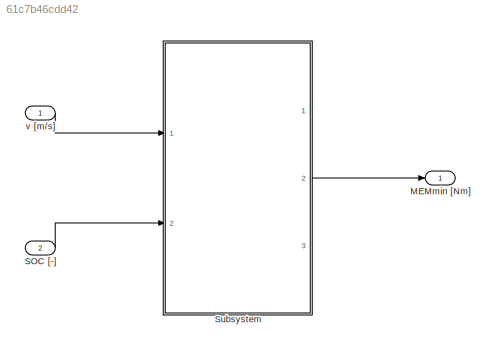
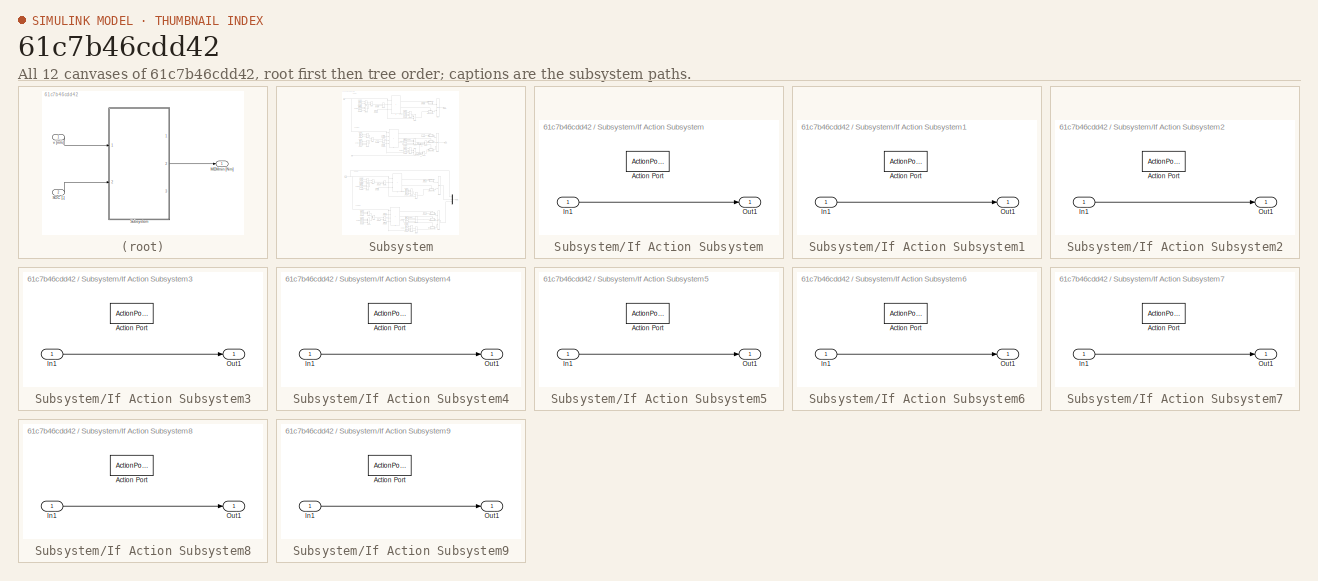
[diagram: thumbnail index - all 12 canvases of the model, root first then tree order]
MODEL slx_61c7b46cdd42
KIND model
CONFIG AbsTol = auto
CONFIG EnableMultiTasking = off
CONFIG FixedStep = auto
CONFIG MaxStep = auto
CONFIG MinStep = auto
CONFIG RelTol = 1e-3
CONFIG SampleTimeConstraint = Unconstrained
CONFIG Solver = VariableStepAuto
CONFIG SolverName = VariableStepAuto
CONFIG StartTime = 0.0
CONFIG StopTime = 250/3.6
BLOCK [Outport] MEMmin [Nm]
  IconDisplay = Port number
BLOCK [Inport] SOC [-]
  IconDisplay = Port number
  Port = 2
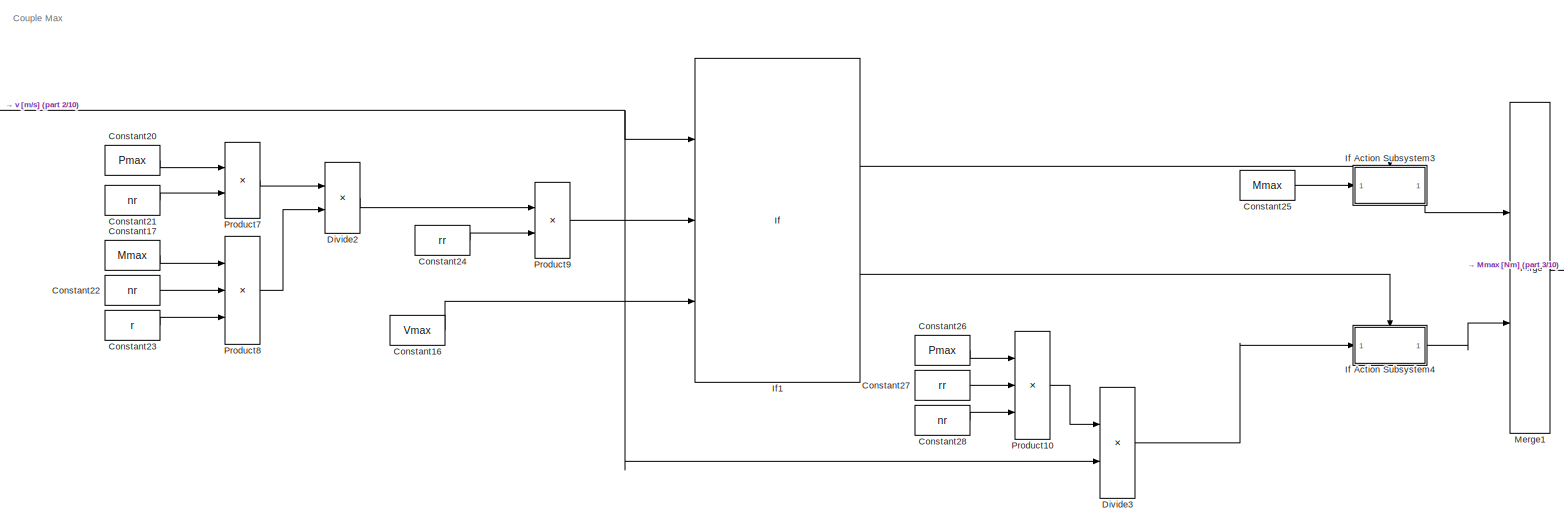
[diagram: Subsystem - part 1/10, full width, top band]
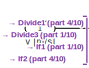
[diagram: Subsystem - part 2/10, top left region]
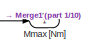
[diagram: Subsystem - part 3/10, top right region]
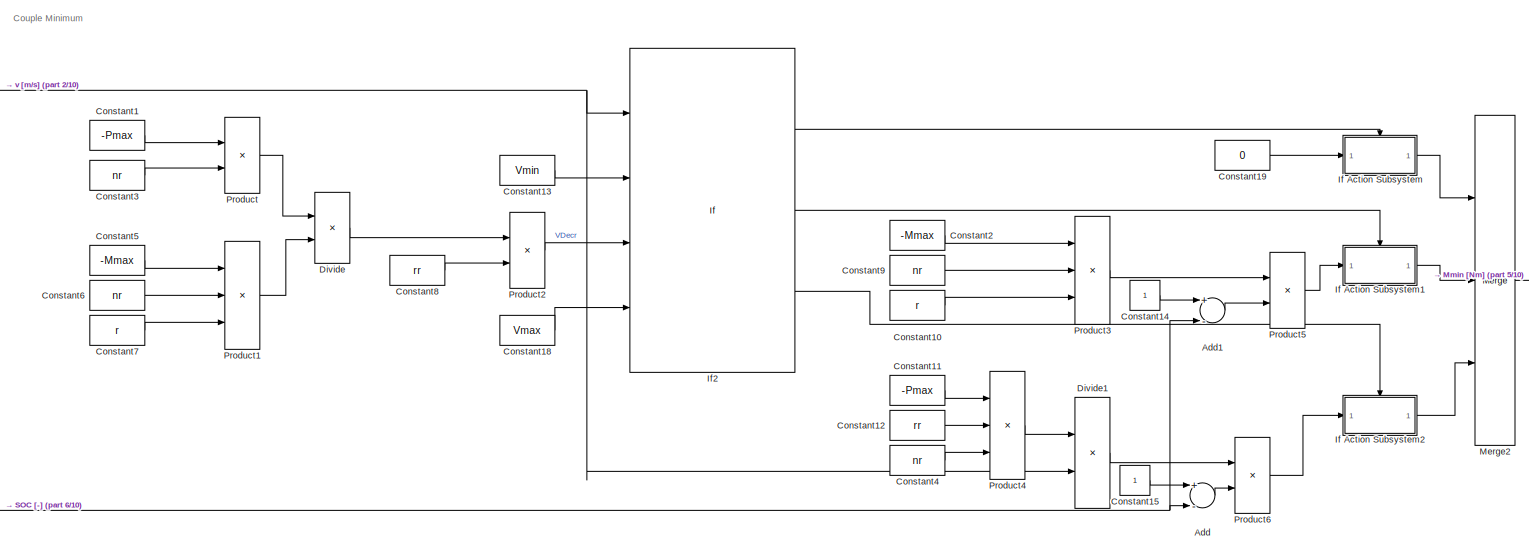
[diagram: Subsystem - part 4/10, full width, middle band]
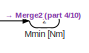
[diagram: Subsystem - part 5/10, middle right region]
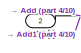
[diagram: Subsystem - part 6/10, middle left region]
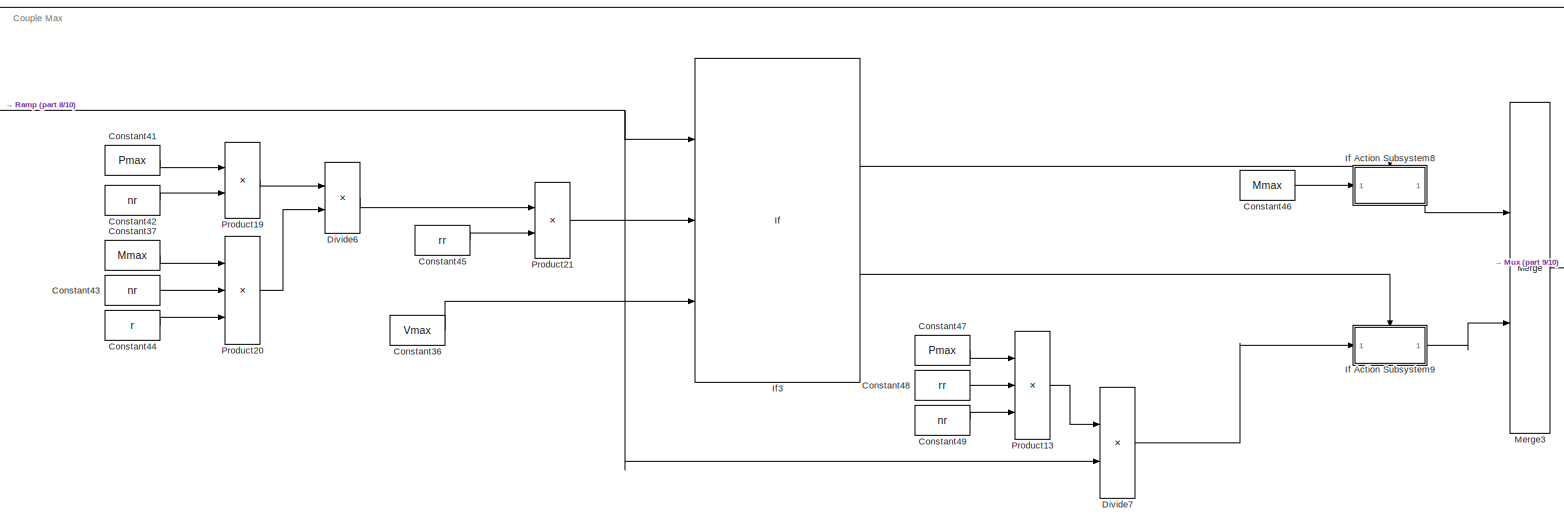
[diagram: Subsystem - part 7/10, full width, middle band]
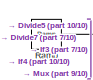
[diagram: Subsystem - part 8/10, middle left region]
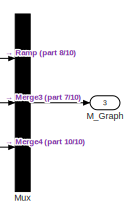
[diagram: Subsystem - part 9/10, bottom right region]
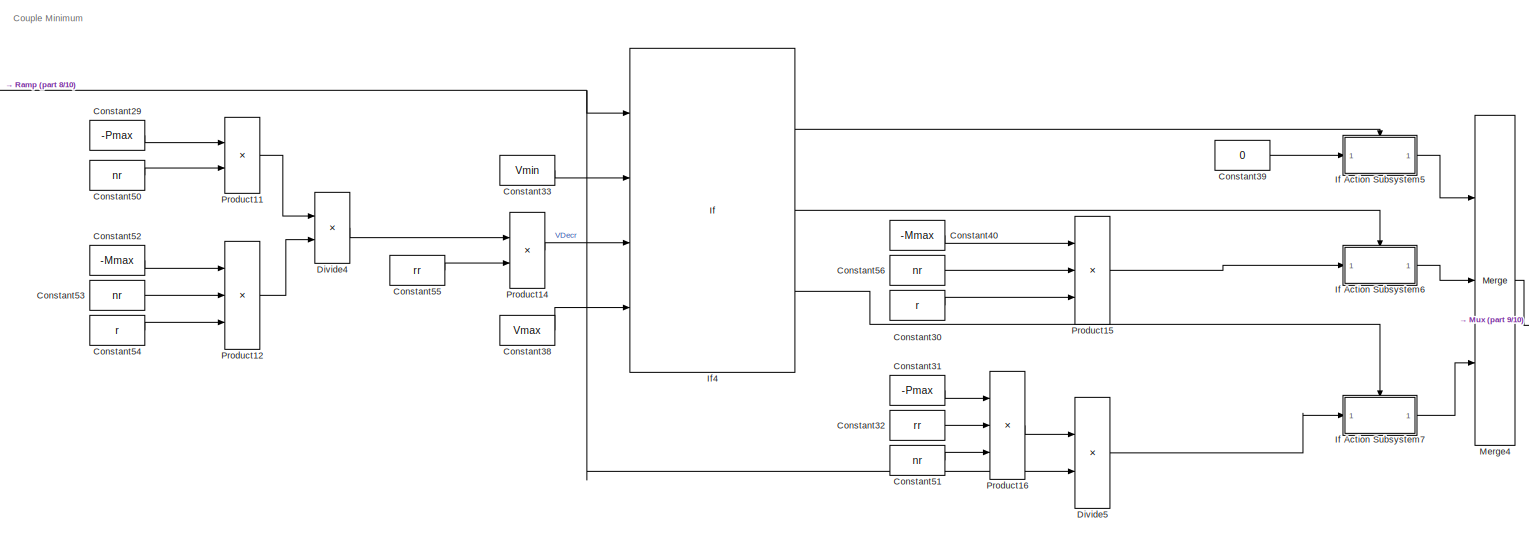
[diagram: Subsystem - part 10/10, full width, bottom band]
BLOCK [SubSystem] Subsystem
  Ports = [2, 3]
  RequestExecContextInheritance = off
BLOCK [Sum] Subsystem/Add
  InputSameDT = off
  Inputs = +-
  OutDataTypeStr = Inherit: Inherit via internal rule
  Ports = [2, 1]
  SaturateOnIntegerOverflow = off
BLOCK [Sum] Subsystem/Add1
  InputSameDT = off
  Inputs = +-
  OutDataTypeStr = Inherit: Inherit via internal rule
  Ports = [2, 1]
  SaturateOnIntegerOverflow = off
BLOCK [Constant] Subsystem/Constant1
  Value = -Pmax
BLOCK [Constant] Subsystem/Constant10
  Value = r
BLOCK [Constant] Subsystem/Constant11
  Value = -Pmax
BLOCK [Constant] Subsystem/Constant12
  Value = rr
BLOCK [Constant] Subsystem/Constant13
  Value = Vmin
BLOCK [Constant] Subsystem/Constant14
BLOCK [Constant] Subsystem/Constant15
BLOCK [Constant] Subsystem/Constant16
  Value = Vmax
BLOCK [Constant] Subsystem/Constant17
  Value = Mmax
BLOCK [Constant] Subsystem/Constant18
  Value = Vmax
BLOCK [Constant] Subsystem/Constant19
  Value = 0
BLOCK [Constant] Subsystem/Constant2
  Value = -Mmax
BLOCK [Constant] Subsystem/Constant20
  Value = Pmax
BLOCK [Constant] Subsystem/Constant21
  Value = nr
BLOCK [Constant] Subsystem/Constant22
  Value = nr
BLOCK [Constant] Subsystem/Constant23
  Value = r
BLOCK [Constant] Subsystem/Constant24
  Value = rr
BLOCK [Constant] Subsystem/Constant25
  Value = Mmax
BLOCK [Constant] Subsystem/Constant26
  Value = Pmax
BLOCK [Constant] Subsystem/Constant27
  Value = rr
BLOCK [Constant] Subsystem/Constant28
  Value = nr
BLOCK [Constant] Subsystem/Constant29
  Value = -Pmax
BLOCK [Constant] Subsystem/Constant3
  Value = nr
BLOCK [Constant] Subsystem/Constant30
  Value = r
BLOCK [Constant] Subsystem/Constant31
  Value = -Pmax
BLOCK [Constant] Subsystem/Constant32
  Value = rr
BLOCK [Constant] Subsystem/Constant33
  Value = Vmin
BLOCK [Constant] Subsystem/Constant36
  Value = Vmax
BLOCK [Constant] Subsystem/Constant37
  Value = Mmax
BLOCK [Constant] Subsystem/Constant38
  Value = Vmax
BLOCK [Constant] Subsystem/Constant39
  Value = 0
BLOCK [Constant] Subsystem/Constant4
  Value = nr
BLOCK [Constant] Subsystem/Constant40
  Value = -Mmax
BLOCK [Constant] Subsystem/Constant41
  Value = Pmax
BLOCK [Constant] Subsystem/Constant42
  Value = nr
BLOCK [Constant] Subsystem/Constant43
  Value = nr
BLOCK [Constant] Subsystem/Constant44
  Value = r
BLOCK [Constant] Subsystem/Constant45
  Value = rr
BLOCK [Constant] Subsystem/Constant46
  Value = Mmax
BLOCK [Constant] Subsystem/Constant47
  Value = Pmax
BLOCK [Constant] Subsystem/Constant48
  Value = rr
BLOCK [Constant] Subsystem/Constant49
  Value = nr
BLOCK [Constant] Subsystem/Constant5
  Value = -Mmax
BLOCK [Constant] Subsystem/Constant50
  Value = nr
BLOCK [Constant] Subsystem/Constant51
  Value = nr
BLOCK [Constant] Subsystem/Constant52
  Value = -Mmax
BLOCK [Constant] Subsystem/Constant53
  Value = nr
BLOCK [Constant] Subsystem/Constant54
  Value = r
BLOCK [Constant] Subsystem/Constant55
  Value = rr
BLOCK [Constant] Subsystem/Constant56
  Value = nr
BLOCK [Constant] Subsystem/Constant6
  Value = nr
BLOCK [Constant] Subsystem/Constant7
  Value = r
BLOCK [Constant] Subsystem/Constant8
  Value = rr
BLOCK [Constant] Subsystem/Constant9
  Value = nr
BLOCK [Product] Subsystem/Divide
  InputSameDT = off
  Inputs = */
  OutDataTypeStr = Inherit: Inherit via internal rule
  Ports = [2, 1]
  RndMeth = Floor
  SaturateOnIntegerOverflow = off
BLOCK [Product] Subsystem/Divide1
  InputSameDT = off
  Inputs = */
  OutDataTypeStr = Inherit: Inherit via internal rule
  Ports = [2, 1]
  RndMeth = Floor
  SaturateOnIntegerOverflow = off
BLOCK [Product] Subsystem/Divide2
  InputSameDT = off
  Inputs = */
  OutDataTypeStr = Inherit: Inherit via internal rule
  Ports = [2, 1]
  RndMeth = Floor
  SaturateOnIntegerOverflow = off
BLOCK [Product] Subsystem/Divide3
  InputSameDT = off
  Inputs = */
  OutDataTypeStr = Inherit: Inherit via internal rule
  Ports = [2, 1]
  RndMeth = Floor
  SaturateOnIntegerOverflow = off
BLOCK [Product] Subsystem/Divide4
  InputSameDT = off
  Inputs = */
  OutDataTypeStr = Inherit: Inherit via internal rule
  Ports = [2, 1]
  RndMeth = Floor
  SaturateOnIntegerOverflow = off
BLOCK [Product] Subsystem/Divide5
  InputSameDT = off
  Inputs = */
  OutDataTypeStr = Inherit: Inherit via internal rule
  Ports = [2, 1]
  RndMeth = Floor
  SaturateOnIntegerOverflow = off
BLOCK [Product] Subsystem/Divide6
  InputSameDT = off
  Inputs = */
  OutDataTypeStr = Inherit: Inherit via internal rule
  Ports = [2, 1]
  RndMeth = Floor
  SaturateOnIntegerOverflow = off
BLOCK [Product] Subsystem/Divide7
  InputSameDT = off
  Inputs = */
  OutDataTypeStr = Inherit: Inherit via internal rule
  Ports = [2, 1]
  RndMeth = Floor
  SaturateOnIntegerOverflow = off
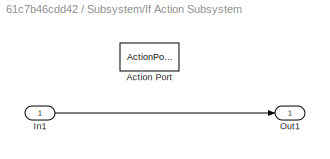
BLOCK [SubSystem] Subsystem/If Action Subsystem
  Ports = [1, 1, 0, 0, 0, 0, 0, 1]
  RequestExecContextInheritance = off
  TreatAsAtomicUnit = on
BLOCK [ActionPort] Subsystem/If Action Subsystem/Action Port
  ActionType = then
BLOCK [Inport] Subsystem/If Action Subsystem/In1
  IconDisplay = Port number
BLOCK [Outport] Subsystem/If Action Subsystem/Out1
  IconDisplay = Port number
BLOCK [SubSystem] Subsystem/If Action Subsystem1
  Ports = [1, 1, 0, 0, 0, 0, 0, 1]
  RequestExecContextInheritance = off
  TreatAsAtomicUnit = on
BLOCK [ActionPort] Subsystem/If Action Subsystem1/Action Port
  ActionType = elseif
BLOCK [Inport] Subsystem/If Action Subsystem1/In1
  IconDisplay = Port number
BLOCK [Outport] Subsystem/If Action Subsystem1/Out1
  IconDisplay = Port number
BLOCK [SubSystem] Subsystem/If Action Subsystem2
  Ports = [1, 1, 0, 0, 0, 0, 0, 1]
  RequestExecContextInheritance = off
  TreatAsAtomicUnit = on
BLOCK [ActionPort] Subsystem/If Action Subsystem2/Action Port
  ActionType = elseif
BLOCK [Inport] Subsystem/If Action Subsystem2/In1
  IconDisplay = Port number
BLOCK [Outport] Subsystem/If Action Subsystem2/Out1
  IconDisplay = Port number
BLOCK [SubSystem] Subsystem/If Action Subsystem3
  Ports = [1, 1, 0, 0, 0, 0, 0, 1]
  RequestExecContextInheritance = off
  TreatAsAtomicUnit = on
BLOCK [ActionPort] Subsystem/If Action Subsystem3/Action Port
  ActionType = then
BLOCK [Inport] Subsystem/If Action Subsystem3/In1
  IconDisplay = Port number
BLOCK [Outport] Subsystem/If Action Subsystem3/Out1
  IconDisplay = Port number
BLOCK [SubSystem] Subsystem/If Action Subsystem4
  Ports = [1, 1, 0, 0, 0, 0, 0, 1]
  RequestExecContextInheritance = off
  TreatAsAtomicUnit = on
BLOCK [ActionPort] Subsystem/If Action Subsystem4/Action Port
  ActionType = elseif
BLOCK [Inport] Subsystem/If Action Subsystem4/In1
  IconDisplay = Port number
BLOCK [Outport] Subsystem/If Action Subsystem4/Out1
  IconDisplay = Port number
BLOCK [SubSystem] Subsystem/If Action Subsystem5
  Ports = [1, 1, 0, 0, 0, 0, 0, 1]
  RequestExecContextInheritance = off
  TreatAsAtomicUnit = on
BLOCK [ActionPort] Subsystem/If Action Subsystem5/Action Port
  ActionType = then
BLOCK [Inport] Subsystem/If Action Subsystem5/In1
  IconDisplay = Port number
BLOCK [Outport] Subsystem/If Action Subsystem5/Out1
  IconDisplay = Port number
BLOCK [SubSystem] Subsystem/If Action Subsystem6
  Ports = [1, 1, 0, 0, 0, 0, 0, 1]
  RequestExecContextInheritance = off
  TreatAsAtomicUnit = on
BLOCK [ActionPort] Subsystem/If Action Subsystem6/Action Port
  ActionType = elseif
BLOCK [Inport] Subsystem/If Action Subsystem6/In1
  IconDisplay = Port number
BLOCK [Outport] Subsystem/If Action Subsystem6/Out1
  IconDisplay = Port number
BLOCK [SubSystem] Subsystem/If Action Subsystem7
  Ports = [1, 1, 0, 0, 0, 0, 0, 1]
  RequestExecContextInheritance = off
  TreatAsAtomicUnit = on
BLOCK [ActionPort] Subsystem/If Action Subsystem7/Action Port
  ActionType = elseif
BLOCK [Inport] Subsystem/If Action Subsystem7/In1
  IconDisplay = Port number
BLOCK [Outport] Subsystem/If Action Subsystem7/Out1
  IconDisplay = Port number
BLOCK [SubSystem] Subsystem/If Action Subsystem8
  Ports = [1, 1, 0, 0, 0, 0, 0, 1]
  RequestExecContextInheritance = off
  TreatAsAtomicUnit = on
BLOCK [ActionPort] Subsystem/If Action Subsystem8/Action Port
  ActionType = then
BLOCK [Inport] Subsystem/If Action Subsystem8/In1
  IconDisplay = Port number
BLOCK [Outport] Subsystem/If Action Subsystem8/Out1
  IconDisplay = Port number
BLOCK [SubSystem] Subsystem/If Action Subsystem9
  Ports = [1, 1, 0, 0, 0, 0, 0, 1]
  RequestExecContextInheritance = off
  TreatAsAtomicUnit = on
BLOCK [ActionPort] Subsystem/If Action Subsystem9/Action Port
  ActionType = elseif
BLOCK [Inport] Subsystem/If Action Subsystem9/In1
  IconDisplay = Port number
BLOCK [Outport] Subsystem/If Action Subsystem9/Out1
  IconDisplay = Port number
BLOCK [If] Subsystem/If1
  ElseIfExpressions = u1 > u2 & u1<=u3
  IfExpression = u1 <= u2
  NumInputs = 3
  Ports = [3, 2]
  ShowElse = off
BLOCK [If] Subsystem/If2
  ElseIfExpressions = u1 > u2 & u1<=u3, u1 > u3 & u1<=u4
  IfExpression = u1 <= u2
  NumInputs = 4
  Ports = [4, 3]
  ShowElse = off
BLOCK [If] Subsystem/If3
  ElseIfExpressions = u1 > u2 & u1<=u3
  IfExpression = u1 <= u2
  NumInputs = 3
  Ports = [3, 2]
  ShowElse = off
BLOCK [If] Subsystem/If4
  ElseIfExpressions = u1 > u2 & u1<=u3, u1 > u3 & u1<=u4
  IfExpression = u1 <= u2
  NumInputs = 4
  Ports = [4, 3]
  ShowElse = off
BLOCK [Outport] Subsystem/M_Graph
  IconDisplay = Port number
  Port = 3
BLOCK [Merge] Subsystem/Merge1
  Ports = [2, 1]
BLOCK [Merge] Subsystem/Merge2
  Inputs = 3
  Ports = [3, 1]
BLOCK [Merge] Subsystem/Merge3
  Ports = [2, 1]
BLOCK [Merge] Subsystem/Merge4
  Inputs = 3
  Ports = [3, 1]
BLOCK [Outport] Subsystem/Mmax [Nm]
  IconDisplay = Port number
BLOCK [Outport] Subsystem/Mmin [Nm]
  IconDisplay = Port number
  Port = 2
BLOCK [Mux] Subsystem/Mux
  DisplayOption = bar
  Inputs = 3
  Ports = [3, 1]
BLOCK [Product] Subsystem/Product
  InputSameDT = off
  OutDataTypeStr = Inherit: Inherit via internal rule
  Ports = [2, 1]
  RndMeth = Floor
  SaturateOnIntegerOverflow = off
BLOCK [Product] Subsystem/Product1
  InputSameDT = off
  Inputs = 3
  OutDataTypeStr = Inherit: Inherit via internal rule
  Ports = [3, 1]
  RndMeth = Floor
  SaturateOnIntegerOverflow = off
BLOCK [Product] Subsystem/Product10
  InputSameDT = off
  Inputs = 3
  OutDataTypeStr = Inherit: Inherit via internal rule
  Ports = [3, 1]
  RndMeth = Floor
  SaturateOnIntegerOverflow = off
BLOCK [Product] Subsystem/Product11
  InputSameDT = off
  OutDataTypeStr = Inherit: Inherit via internal rule
  Ports = [2, 1]
  RndMeth = Floor
  SaturateOnIntegerOverflow = off
BLOCK [Product] Subsystem/Product12
  InputSameDT = off
  Inputs = 3
  OutDataTypeStr = Inherit: Inherit via internal rule
  Ports = [3, 1]
  RndMeth = Floor
  SaturateOnIntegerOverflow = off
BLOCK [Product] Subsystem/Product13
  InputSameDT = off
  Inputs = 3
  OutDataTypeStr = Inherit: Inherit via internal rule
  Ports = [3, 1]
  RndMeth = Floor
  SaturateOnIntegerOverflow = off
BLOCK [Product] Subsystem/Product14
  InputSameDT = off
  OutDataTypeStr = Inherit: Inherit via internal rule
  Ports = [2, 1]
  RndMeth = Floor
  SaturateOnIntegerOverflow = off
BLOCK [Product] Subsystem/Product15
  InputSameDT = off
  Inputs = 3
  OutDataTypeStr = Inherit: Inherit via internal rule
  Ports = [3, 1]
  RndMeth = Floor
  SaturateOnIntegerOverflow = off
BLOCK [Product] Subsystem/Product16
  InputSameDT = off
  Inputs = 3
  OutDataTypeStr = Inherit: Inherit via internal rule
  Ports = [3, 1]
  RndMeth = Floor
  SaturateOnIntegerOverflow = off
BLOCK [Product] Subsystem/Product19
  InputSameDT = off
  OutDataTypeStr = Inherit: Inherit via internal rule
  Ports = [2, 1]
  RndMeth = Floor
  SaturateOnIntegerOverflow = off
BLOCK [Product] Subsystem/Product2
  InputSameDT = off
  OutDataTypeStr = Inherit: Inherit via internal rule
  Ports = [2, 1]
  RndMeth = Floor
  SaturateOnIntegerOverflow = off
BLOCK [Product] Subsystem/Product20
  InputSameDT = off
  Inputs = 3
  OutDataTypeStr = Inherit: Inherit via internal rule
  Ports = [3, 1]
  RndMeth = Floor
  SaturateOnIntegerOverflow = off
BLOCK [Product] Subsystem/Product21
  InputSameDT = off
  OutDataTypeStr = Inherit: Inherit via internal rule
  Ports = [2, 1]
  RndMeth = Floor
  SaturateOnIntegerOverflow = off
BLOCK [Product] Subsystem/Product3
  InputSameDT = off
  Inputs = 3
  OutDataTypeStr = Inherit: Inherit via internal rule
  Ports = [3, 1]
  RndMeth = Floor
  SaturateOnIntegerOverflow = off
BLOCK [Product] Subsystem/Product4
  InputSameDT = off
  Inputs = 3
  OutDataTypeStr = Inherit: Inherit via internal rule
  Ports = [3, 1]
  RndMeth = Floor
  SaturateOnIntegerOverflow = off
BLOCK [Product] Subsystem/Product5
  InputSameDT = off
  OutDataTypeStr = Inherit: Inherit via internal rule
  Ports = [2, 1]
  RndMeth = Floor
  SaturateOnIntegerOverflow = off
BLOCK [Product] Subsystem/Product6
  InputSameDT = off
  OutDataTypeStr = Inherit: Inherit via internal rule
  Ports = [2, 1]
  RndMeth = Floor
  SaturateOnIntegerOverflow = off
BLOCK [Product] Subsystem/Product7
  InputSameDT = off
  OutDataTypeStr = Inherit: Inherit via internal rule
  Ports = [2, 1]
  RndMeth = Floor
  SaturateOnIntegerOverflow = off
BLOCK [Product] Subsystem/Product8
  InputSameDT = off
  Inputs = 3
  OutDataTypeStr = Inherit: Inherit via internal rule
  Ports = [3, 1]
  RndMeth = Floor
  SaturateOnIntegerOverflow = off
BLOCK [Product] Subsystem/Product9
  InputSameDT = off
  OutDataTypeStr = Inherit: Inherit via internal rule
  Ports = [2, 1]
  RndMeth = Floor
  SaturateOnIntegerOverflow = off
BLOCK [Reference] Subsystem/Ramp  REF=simulink/Sources/Ramp
  Ports = [0, 1]
  SourceBlock = simulink/Sources/Ramp
  SourceProductBaseCode = SL
  SourceProductName = Simulink
  SourceType = Ramp
BLOCK [Inport] Subsystem/SOC [-]
  IconDisplay = Port number
  Port = 2
BLOCK [Inport] Subsystem/v [m//s]
  IconDisplay = Port number
BLOCK [Inport] v [m//s]
  IconDisplay = Port number
ANNOTATION Subsystem: Couple Max
ANNOTATION Subsystem: Couple Minimum
LINE SOC [-]:1 -> Subsystem:2
LINE Subsystem/Add1:1 -> Subsystem/Product5:2
LINE Subsystem/Add:1 -> Subsystem/Product6:2
LINE Subsystem/Constant10:1 -> Subsystem/Product3:3
LINE Subsystem/Constant11:1 -> Subsystem/Product4:1
LINE Subsystem/Constant12:1 -> Subsystem/Product4:2
LINE Subsystem/Constant13:1 -> Subsystem/If2:2
LINE Subsystem/Constant14:1 -> Subsystem/Add1:1
LINE Subsystem/Constant15:1 -> Subsystem/Add:1
LINE Subsystem/Constant16:1 -> Subsystem/If1:3
LINE Subsystem/Constant17:1 -> Subsystem/Product8:1
LINE Subsystem/Constant18:1 -> Subsystem/If2:4
LINE Subsystem/Constant19:1 -> Subsystem/If Action Subsystem:1
LINE Subsystem/Constant1:1 -> Subsystem/Product:1
LINE Subsystem/Constant20:1 -> Subsystem/Product7:1
LINE Subsystem/Constant21:1 -> Subsystem/Product7:2
LINE Subsystem/Constant22:1 -> Subsystem/Product8:2
LINE Subsystem/Constant23:1 -> Subsystem/Product8:3
LINE Subsystem/Constant24:1 -> Subsystem/Product9:2
LINE Subsystem/Constant25:1 -> Subsystem/If Action Subsystem3:1
LINE Subsystem/Constant26:1 -> Subsystem/Product10:1
LINE Subsystem/Constant27:1 -> Subsystem/Product10:2
LINE Subsystem/Constant28:1 -> Subsystem/Product10:3
LINE Subsystem/Constant29:1 -> Subsystem/Product11:1
LINE Subsystem/Constant2:1 -> Subsystem/Product3:1
LINE Subsystem/Constant30:1 -> Subsystem/Product15:3
LINE Subsystem/Constant31:1 -> Subsystem/Product16:1
LINE Subsystem/Constant32:1 -> Subsystem/Product16:2
LINE Subsystem/Constant33:1 -> Subsystem/If4:2
LINE Subsystem/Constant36:1 -> Subsystem/If3:3
LINE Subsystem/Constant37:1 -> Subsystem/Product20:1
LINE Subsystem/Constant38:1 -> Subsystem/If4:4
LINE Subsystem/Constant39:1 -> Subsystem/If Action Subsystem5:1
LINE Subsystem/Constant3:1 -> Subsystem/Product:2
LINE Subsystem/Constant40:1 -> Subsystem/Product15:1
LINE Subsystem/Constant41:1 -> Subsystem/Product19:1
LINE Subsystem/Constant42:1 -> Subsystem/Product19:2
LINE Subsystem/Constant43:1 -> Subsystem/Product20:2
LINE Subsystem/Constant44:1 -> Subsystem/Product20:3
LINE Subsystem/Constant45:1 -> Subsystem/Product21:2
LINE Subsystem/Constant46:1 -> Subsystem/If Action Subsystem8:1
LINE Subsystem/Constant47:1 -> Subsystem/Product13:1
LINE Subsystem/Constant48:1 -> Subsystem/Product13:2
LINE Subsystem/Constant49:1 -> Subsystem/Product13:3
LINE Subsystem/Constant4:1 -> Subsystem/Product4:3
LINE Subsystem/Constant50:1 -> Subsystem/Product11:2
LINE Subsystem/Constant51:1 -> Subsystem/Product16:3
LINE Subsystem/Constant52:1 -> Subsystem/Product12:1
LINE Subsystem/Constant53:1 -> Subsystem/Product12:2
LINE Subsystem/Constant54:1 -> Subsystem/Product12:3
LINE Subsystem/Constant55:1 -> Subsystem/Product14:2
LINE Subsystem/Constant56:1 -> Subsystem/Product15:2
LINE Subsystem/Constant5:1 -> Subsystem/Product1:1
LINE Subsystem/Constant6:1 -> Subsystem/Product1:2
LINE Subsystem/Constant7:1 -> Subsystem/Product1:3
LINE Subsystem/Constant8:1 -> Subsystem/Product2:2
LINE Subsystem/Constant9:1 -> Subsystem/Product3:2
LINE Subsystem/Divide1:1 -> Subsystem/Product6:1
LINE Subsystem/Divide2:1 -> Subsystem/Product9:1
LINE Subsystem/Divide3:1 -> Subsystem/If Action Subsystem4:1
LINE Subsystem/Divide4:1 -> Subsystem/Product14:1
LINE Subsystem/Divide5:1 -> Subsystem/If Action Subsystem7:1
LINE Subsystem/Divide6:1 -> Subsystem/Product21:1
LINE Subsystem/Divide7:1 -> Subsystem/If Action Subsystem9:1
LINE Subsystem/Divide:1 -> Subsystem/Product2:1
LINE Subsystem/If Action Subsystem/In1:1 -> Subsystem/If Action Subsystem/Out1:1
LINE Subsystem/If Action Subsystem1/In1:1 -> Subsystem/If Action Subsystem1/Out1:1
LINE Subsystem/If Action Subsystem1:1 -> Subsystem/Merge2:2
LINE Subsystem/If Action Subsystem2/In1:1 -> Subsystem/If Action Subsystem2/Out1:1
LINE Subsystem/If Action Subsystem2:1 -> Subsystem/Merge2:3
LINE Subsystem/If Action Subsystem3/In1:1 -> Subsystem/If Action Subsystem3/Out1:1
LINE Subsystem/If Action Subsystem3:1 -> Subsystem/Merge1:1
LINE Subsystem/If Action Subsystem4/In1:1 -> Subsystem/If Action Subsystem4/Out1:1
LINE Subsystem/If Action Subsystem4:1 -> Subsystem/Merge1:2
LINE Subsystem/If Action Subsystem5/In1:1 -> Subsystem/If Action Subsystem5/Out1:1
LINE Subsystem/If Action Subsystem5:1 -> Subsystem/Merge4:1
LINE Subsystem/If Action Subsystem6/In1:1 -> Subsystem/If Action Subsystem6/Out1:1
LINE Subsystem/If Action Subsystem6:1 -> Subsystem/Merge4:2
LINE Subsystem/If Action Subsystem7/In1:1 -> Subsystem/If Action Subsystem7/Out1:1
LINE Subsystem/If Action Subsystem7:1 -> Subsystem/Merge4:3
LINE Subsystem/If Action Subsystem8/In1:1 -> Subsystem/If Action Subsystem8/Out1:1
LINE Subsystem/If Action Subsystem8:1 -> Subsystem/Merge3:1
LINE Subsystem/If Action Subsystem9/In1:1 -> Subsystem/If Action Subsystem9/Out1:1
LINE Subsystem/If Action Subsystem9:1 -> Subsystem/Merge3:2
LINE Subsystem/If Action Subsystem:1 -> Subsystem/Merge2:1
LINE Subsystem/If1:1 -> Subsystem/If Action Subsystem3:ifaction
LINE Subsystem/If1:2 -> Subsystem/If Action Subsystem4:ifaction
LINE Subsystem/If2:1 -> Subsystem/If Action Subsystem:ifaction
LINE Subsystem/If2:2 -> Subsystem/If Action Subsystem1:ifaction
LINE Subsystem/If2:3 -> Subsystem/If Action Subsystem2:ifaction
LINE Subsystem/If3:1 -> Subsystem/If Action Subsystem8:ifaction
LINE Subsystem/If3:2 -> Subsystem/If Action Subsystem9:ifaction
LINE Subsystem/If4:1 -> Subsystem/If Action Subsystem5:ifaction
LINE Subsystem/If4:2 -> Subsystem/If Action Subsystem6:ifaction
LINE Subsystem/If4:3 -> Subsystem/If Action Subsystem7:ifaction
LINE Subsystem/Merge1:1 -> Subsystem/Mmax [Nm]:1
LINE Subsystem/Merge2:1 -> Subsystem/Mmin [Nm]:1
LINE Subsystem/Merge3:1 -> Subsystem/Mux:2
LINE Subsystem/Merge4:1 -> Subsystem/Mux:3
LINE Subsystem/Mux:1 -> Subsystem/M_Graph:1
LINE Subsystem/Product10:1 -> Subsystem/Divide3:1
LINE Subsystem/Product11:1 -> Subsystem/Divide4:1
LINE Subsystem/Product12:1 -> Subsystem/Divide4:2
LINE Subsystem/Product13:1 -> Subsystem/Divide7:1
LINE Subsystem/Product14:1 -> Subsystem/If4:3
LINE Subsystem/Product15:1 -> Subsystem/If Action Subsystem6:1
LINE Subsystem/Product16:1 -> Subsystem/Divide5:1
LINE Subsystem/Product19:1 -> Subsystem/Divide6:1
LINE Subsystem/Product1:1 -> Subsystem/Divide:2
LINE Subsystem/Product20:1 -> Subsystem/Divide6:2
LINE Subsystem/Product21:1 -> Subsystem/If3:2
LINE Subsystem/Product2:1 -> Subsystem/If2:3
LINE Subsystem/Product3:1 -> Subsystem/Product5:1
LINE Subsystem/Product4:1 -> Subsystem/Divide1:1
LINE Subsystem/Product5:1 -> Subsystem/If Action Subsystem1:1
LINE Subsystem/Product6:1 -> Subsystem/If Action Subsystem2:1
LINE Subsystem/Product7:1 -> Subsystem/Divide2:1
LINE Subsystem/Product8:1 -> Subsystem/Divide2:2
LINE Subsystem/Product9:1 -> Subsystem/If1:2
LINE Subsystem/Product:1 -> Subsystem/Divide:1
NET Subsystem/Ramp:1 -> Subsystem/Divide5:2, Subsystem/Divide7:2, Subsystem/If3:1, Subsystem/If4:1, Subsystem/Mux:1
NET Subsystem/SOC [-]:1 -> Subsystem/Add1:2, Subsystem/Add:2
NET Subsystem/v [m//s]:1 -> Subsystem/Divide1:2, Subsystem/Divide3:2, Subsystem/If1:1, Subsystem/If2:1
LINE Subsystem:2 -> MEMmin [Nm]:1
LINE v [m//s]:1 -> Subsystem:1
note: NET lines group one-source signal fan-out (src -> all destinations, sorted); 1:1 wires keep LINE
